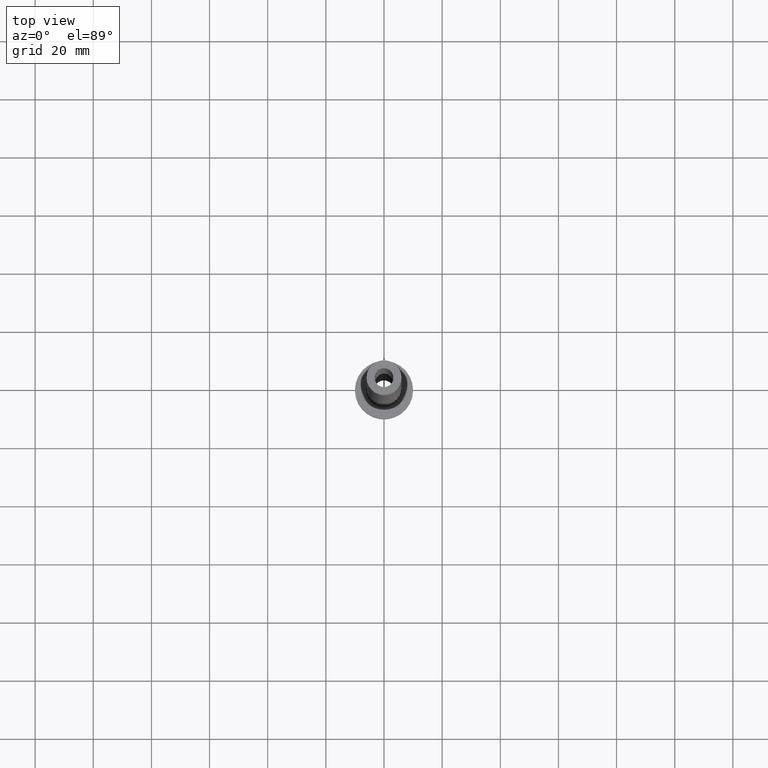
[diagram: clean part render]
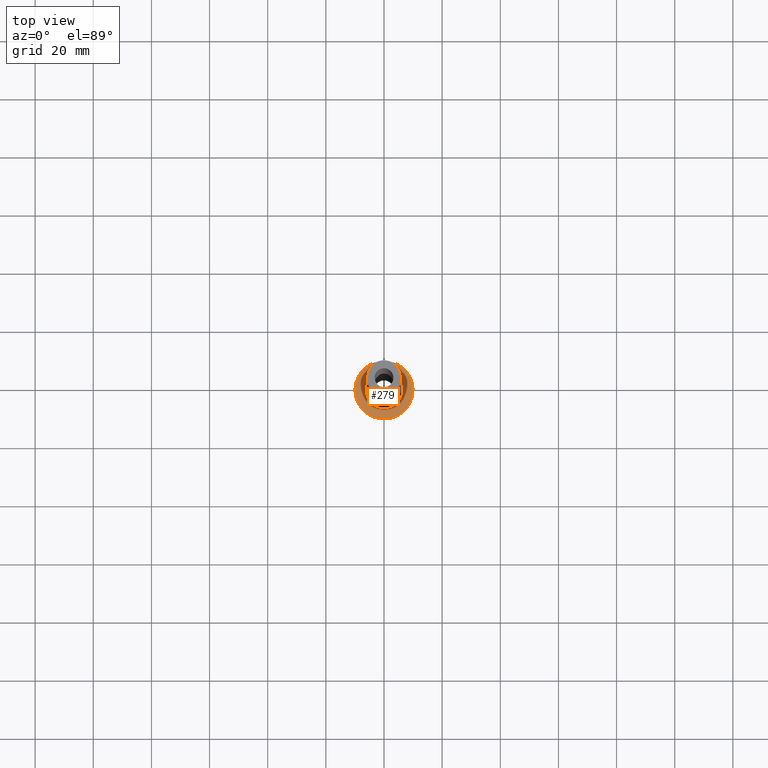
[diagram: same view with one face highlighted and labeled with its STEP entity id]
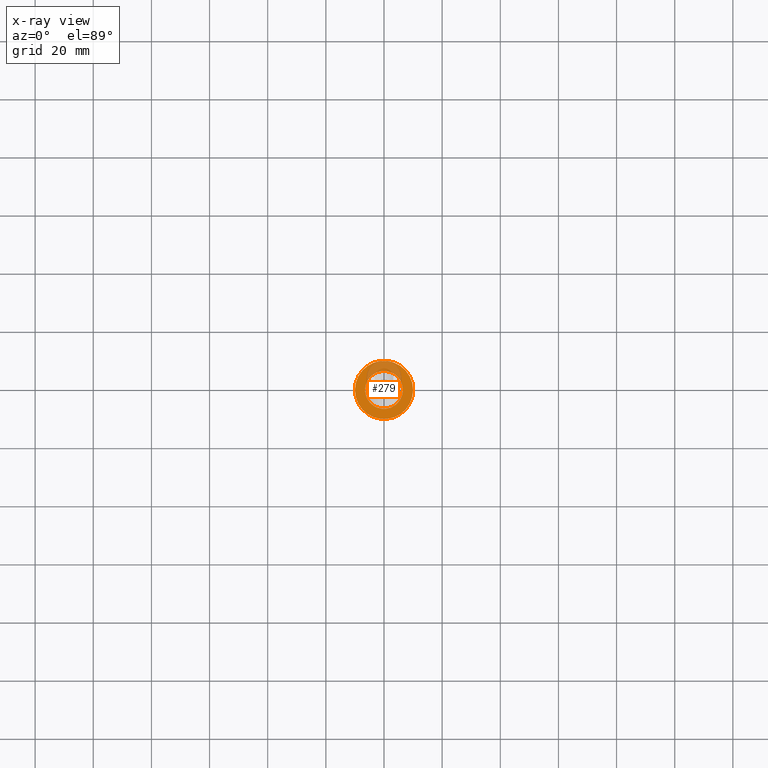
[diagram: x-ray of the same camera — body ghosted, the highlighted face saturated]
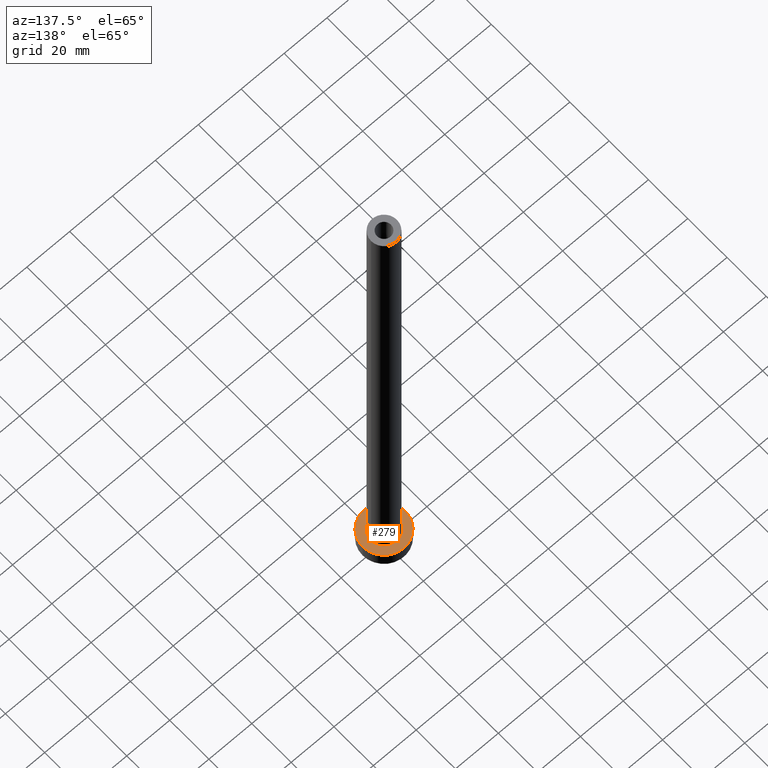
[diagram: same view with one face highlighted and labeled with its STEP entity id]
A machine part, top view. The second image highlights one B-rep face of the part: STEP entity #279.
The next image is the same camera in x-ray: the body ghosted, the highlighted face saturated — about 23% of this face is hidden behind the body in this view.
A second angle (auxiliary view) of the same face is appended — the face is thin or edge-on in the first view.
In plain terms, the highlighted planar face has unit normal (0, 0, 1).
Its self-contained STEP definition (entity closure, byte-faithful):
#14 = DIRECTION ( 'NONE',  ( 1.000000000000000000, 0.000000000000000000, 0.000000000000000000 ) ) ;
#16 = EDGE_CURVE ( 'NONE', #195, #52, #228, .T. ) ;
#27 = EDGE_LOOP ( 'NONE', ( #305, #172 ) ) ;
#38 = DIRECTION ( 'NONE',  ( 1.000000000000000000, 0.000000000000000000, 0.000000000000000000 ) ) ;
#52 = VERTEX_POINT ( 'NONE', #366 ) ;
#53 = CARTESIAN_POINT ( 'NONE',  ( -6.500000000000000888, 7.960204194457796463E-16, 7.000000000000002665 ) ) ;
#56 = DIRECTION ( 'NONE',  ( 1.000000000000000000, 0.000000000000000000, -0.000000000000000000 ) ) ;
#89 = CARTESIAN_POINT ( 'NONE',  ( 10.00000000000000000, 1.224646799147353256E-15, 7.000000000000000000 ) ) ;
#90 = CARTESIAN_POINT ( 'NONE',  ( 0.000000000000000000, 0.000000000000000000, 7.000000000000000000 ) ) ;
#107 = CIRCLE ( 'NONE', #252, 6.500000000000000888 ) ;
#109 = DIRECTION ( 'NONE',  ( 1.000000000000000000, 0.000000000000000000, 0.000000000000000000 ) ) ;
#117 = CIRCLE ( 'NONE', #386, 10.00000000000000000 ) ;
#127 = DIRECTION ( 'NONE',  ( 0.000000000000000000, 0.000000000000000000, 1.000000000000000000 ) ) ;
#137 = AXIS2_PLACEMENT_3D ( 'NONE', #90, #442, #56 ) ;
#145 = ORIENTED_EDGE ( 'NONE', *, *, #263, .T. ) ;
#162 = FACE_BOUND ( 'NONE', #27, .T. ) ;
#172 = ORIENTED_EDGE ( 'NONE', *, *, #16, .T. ) ;
#178 = VERTEX_POINT ( 'NONE', #89 ) ;
#195 = VERTEX_POINT ( 'NONE', #53 ) ;
#228 = CIRCLE ( 'NONE', #251, 6.500000000000000888 ) ;
#240 = DIRECTION ( 'NONE',  ( -0.000000000000000000, -0.000000000000000000, -1.000000000000000000 ) ) ;
#251 = AXIS2_PLACEMENT_3D ( 'NONE', #320, #370, #109 ) ;
#252 = AXIS2_PLACEMENT_3D ( 'NONE', #400, #240, #361 ) ;
#253 = EDGE_LOOP ( 'NONE', ( #145, #290 ) ) ;
#263 = EDGE_CURVE ( 'NONE', #332, #178, #117, .T. ) ;
#277 = CARTESIAN_POINT ( 'NONE',  ( -10.00000000000000000, 0.000000000000000000, 7.000000000000000000 ) ) ;
#279 = ADVANCED_FACE ( 'NONE', ( #162, #415 ), #291, .T. ) ;
#284 = CARTESIAN_POINT ( 'NONE',  ( 0.000000000000000000, 0.000000000000000000, 7.000000000000000000 ) ) ;
#290 = ORIENTED_EDGE ( 'NONE', *, *, #331, .T. ) ;
#291 = PLANE ( 'NONE',  #137 ) ;
#305 = ORIENTED_EDGE ( 'NONE', *, *, #411, .T. ) ;
#320 = CARTESIAN_POINT ( 'NONE',  ( 0.000000000000000000, 0.000000000000000000, 7.000000000000000000 ) ) ;
#330 = CARTESIAN_POINT ( 'NONE',  ( 0.000000000000000000, 0.000000000000000000, 7.000000000000000000 ) ) ;
#331 = EDGE_CURVE ( 'NONE', #178, #332, #364, .T. ) ;
#332 = VERTEX_POINT ( 'NONE', #277 ) ;
#357 = DIRECTION ( 'NONE',  ( 0.000000000000000000, 0.000000000000000000, 1.000000000000000000 ) ) ;
#361 = DIRECTION ( 'NONE',  ( 1.000000000000000000, 0.000000000000000000, 0.000000000000000000 ) ) ;
#364 = CIRCLE ( 'NONE', #439, 10.00000000000000000 ) ;
#366 = CARTESIAN_POINT ( 'NONE',  ( 6.500000000000000888, 0.000000000000000000, 7.000000000000002665 ) ) ;
#370 = DIRECTION ( 'NONE',  ( -0.000000000000000000, -0.000000000000000000, -1.000000000000000000 ) ) ;
#386 = AXIS2_PLACEMENT_3D ( 'NONE', #330, #127, #14 ) ;
#400 = CARTESIAN_POINT ( 'NONE',  ( 0.000000000000000000, 0.000000000000000000, 7.000000000000000000 ) ) ;
#411 = EDGE_CURVE ( 'NONE', #52, #195, #107, .T. ) ;
#415 = FACE_OUTER_BOUND ( 'NONE', #253, .T. ) ;
#439 = AXIS2_PLACEMENT_3D ( 'NONE', #284, #357, #38 ) ;
#442 = DIRECTION ( 'NONE',  ( 0.000000000000000000, 0.000000000000000000, 1.000000000000000000 ) ) ;